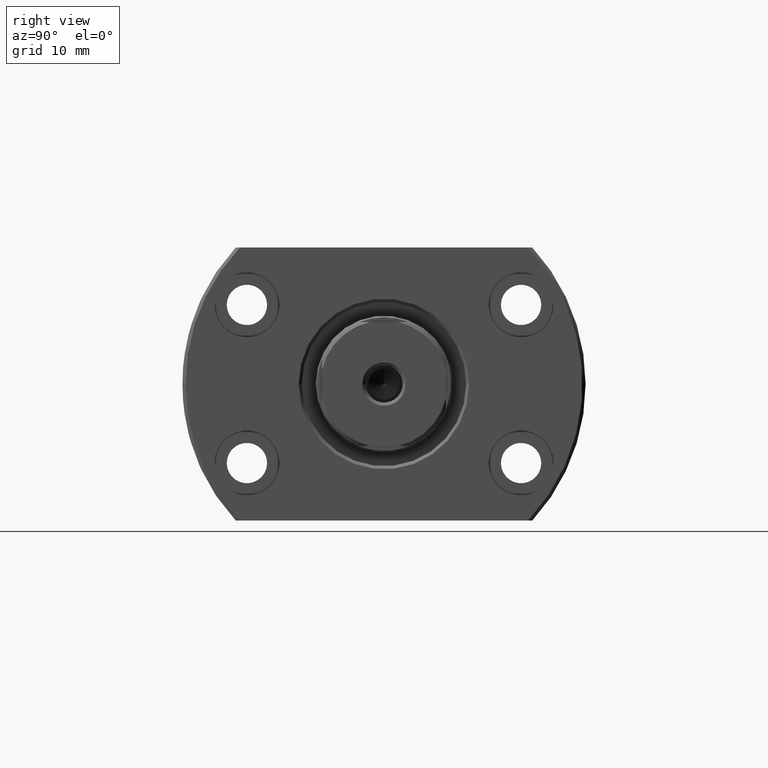
[diagram: clean part render]
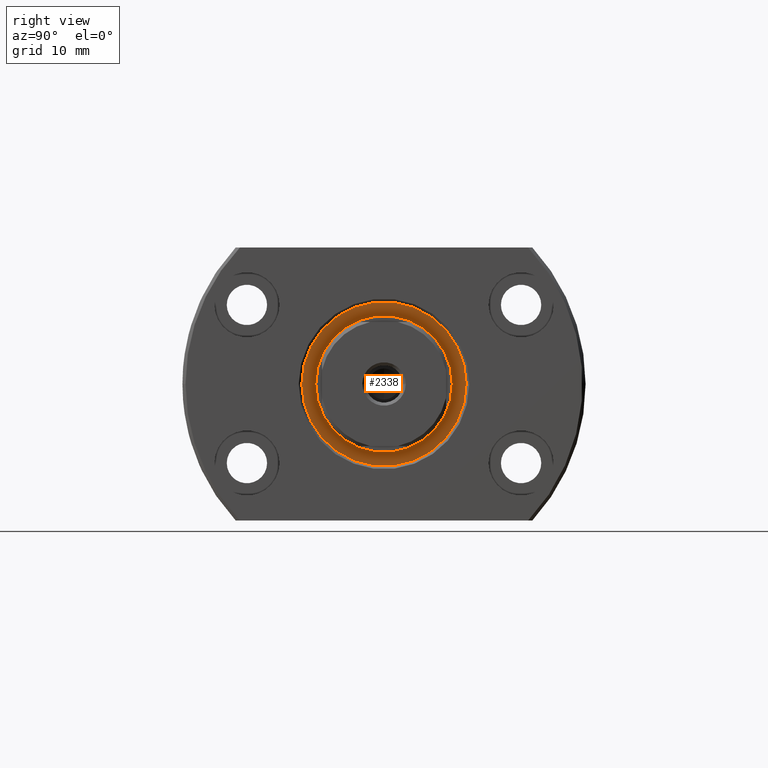
[diagram: same view with one face highlighted and labeled with its STEP entity id]
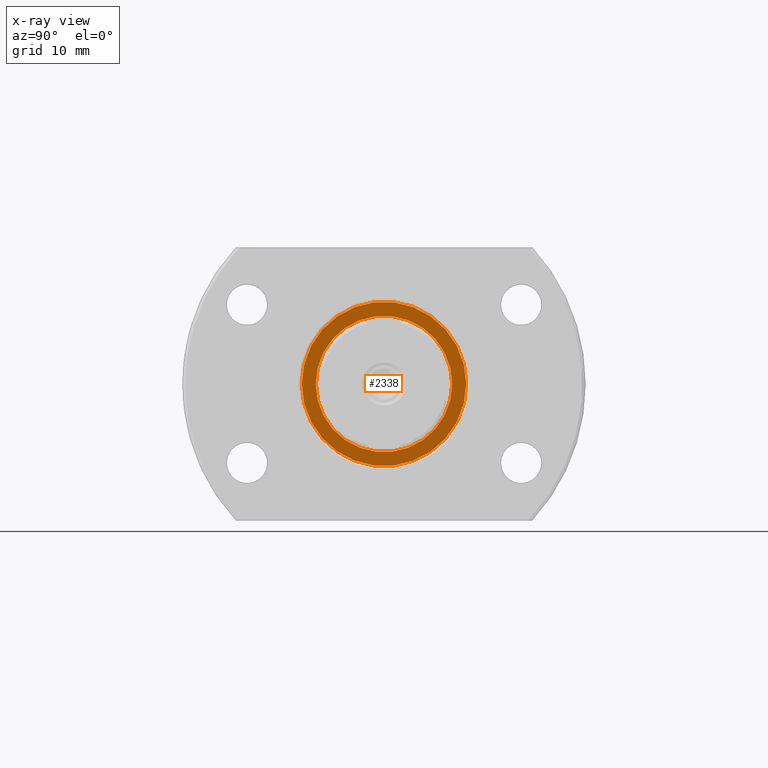
[diagram: x-ray of the same camera — body ghosted, the highlighted face saturated]
A machine part, right view. The second image highlights one B-rep face of the part: STEP entity #2338.
The next image is the same camera in x-ray: the body ghosted, the highlighted face saturated — about 0% of this face is hidden behind the body in this view.
In plain terms, the highlighted planar face has unit normal (1, -0, 0).
Its self-contained STEP definition (entity closure, byte-faithful):
#196 = AXIS2_PLACEMENT_3D ( 'NONE', #2278, #760, #2503 ) ;
#251 = EDGE_CURVE ( 'NONE', #1710, #2878, #2532, .T. ) ;
#268 = AXIS2_PLACEMENT_3D ( 'NONE', #350, #3026, #339 ) ;
#328 = AXIS2_PLACEMENT_3D ( 'NONE', #2109, #370, #1133 ) ;
#339 = DIRECTION ( 'NONE',  ( 2.901719268906659254E-14, 1.000000000000000000, 0.000000000000000000 ) ) ;
#350 = CARTESIAN_POINT ( 'NONE',  ( 29.50000000000000000, -8.515075029415737556E-13, 0.000000000000000000 ) ) ;
#370 = DIRECTION ( 'NONE',  ( 1.000000000000000000, -2.886466111666351885E-14, 0.000000000000000000 ) ) ;
#384 = DIRECTION ( 'NONE',  ( 2.880295582753943605E-14, 1.000000000000000000, 0.000000000000000000 ) ) ;
#527 = ORIENTED_EDGE ( 'NONE', *, *, #251, .T. ) ;
#760 = DIRECTION ( 'NONE',  ( 1.000000000000000000, -2.886466111666351885E-14, 0.000000000000000000 ) ) ;
#761 = CARTESIAN_POINT ( 'NONE',  ( 29.50000000000000000, -8.515075029415738566E-13, 0.000000000000000000 ) ) ;
#924 = DIRECTION ( 'NONE',  ( 1.000000000000000000, -2.886466111666351885E-14, 0.000000000000000000 ) ) ;
#956 = CIRCLE ( 'NONE', #328, 11.00000000000000000 ) ;
#1133 = DIRECTION ( 'NONE',  ( 2.901719268906659254E-14, 1.000000000000000000, 0.000000000000000000 ) ) ;
#1150 = ORIENTED_EDGE ( 'NONE', *, *, #1257, .T. ) ;
#1227 = FACE_OUTER_BOUND ( 'NONE', #2371, .T. ) ;
#1257 = EDGE_CURVE ( 'NONE', #2878, #1710, #1555, .T. ) ;
#1260 = PLANE ( 'NONE',  #2820 ) ;
#1553 = EDGE_CURVE ( 'NONE', #3003, #2411, #2704, .T. ) ;
#1555 = CIRCLE ( 'NONE', #1864, 13.25000000000000178 ) ;
#1661 = CARTESIAN_POINT ( 'NONE',  ( 29.50000000000000000, -8.515075029415738566E-13, 0.000000000000000000 ) ) ;
#1710 = VERTEX_POINT ( 'NONE', #2152 ) ;
#1864 = AXIS2_PLACEMENT_3D ( 'NONE', #1661, #924, #384 ) ;
#1991 = FACE_BOUND ( 'NONE', #2926, .T. ) ;
#2109 = CARTESIAN_POINT ( 'NONE',  ( 29.50000000000000000, -8.515075029415737556E-13, 0.000000000000000000 ) ) ;
#2152 = CARTESIAN_POINT ( 'NONE',  ( 29.50000000000038014, 13.24999999999914913, 0.000000000000000000 ) ) ;
#2278 = CARTESIAN_POINT ( 'NONE',  ( 29.50000000000000000, -8.515075029415738566E-13, 0.000000000000000000 ) ) ;
#2338 = ADVANCED_FACE ( 'NONE', ( #1991, #1227 ), #1260, .T. ) ;
#2344 = CARTESIAN_POINT ( 'NONE',  ( 29.50000000000031619, 10.99999999999914735, 0.000000000000000000 ) ) ;
#2371 = EDGE_LOOP ( 'NONE', ( #527, #1150 ) ) ;
#2411 = VERTEX_POINT ( 'NONE', #2559 ) ;
#2455 = EDGE_CURVE ( 'NONE', #2411, #3003, #956, .T. ) ;
#2503 = DIRECTION ( 'NONE',  ( 2.880295582753943605E-14, 1.000000000000000000, 0.000000000000000000 ) ) ;
#2532 = CIRCLE ( 'NONE', #196, 13.25000000000000178 ) ;
#2542 = CARTESIAN_POINT ( 'NONE',  ( 29.49999999999961631, -13.25000000000085265, 1.622657008870243277E-15 ) ) ;
#2559 = CARTESIAN_POINT ( 'NONE',  ( 29.49999999999968026, -11.00000000000085087, 1.347111479062138695E-15 ) ) ;
#2704 = CIRCLE ( 'NONE', #268, 11.00000000000000000 ) ;
#2768 = DIRECTION ( 'NONE',  ( 1.000000000000000000, -2.886466111666351885E-14, 0.000000000000000000 ) ) ;
#2820 = AXIS2_PLACEMENT_3D ( 'NONE', #761, #2768, #2996 ) ;
#2878 = VERTEX_POINT ( 'NONE', #2542 ) ;
#2909 = ORIENTED_EDGE ( 'NONE', *, *, #1553, .F. ) ;
#2926 = EDGE_LOOP ( 'NONE', ( #2909, #3142 ) ) ;
#2996 = DIRECTION ( 'NONE',  ( 2.886466111666351885E-14, 1.000000000000000000, 0.000000000000000000 ) ) ;
#3003 = VERTEX_POINT ( 'NONE', #2344 ) ;
#3026 = DIRECTION ( 'NONE',  ( 1.000000000000000000, -2.886466111666351885E-14, 0.000000000000000000 ) ) ;
#3142 = ORIENTED_EDGE ( 'NONE', *, *, #2455, .F. ) ;